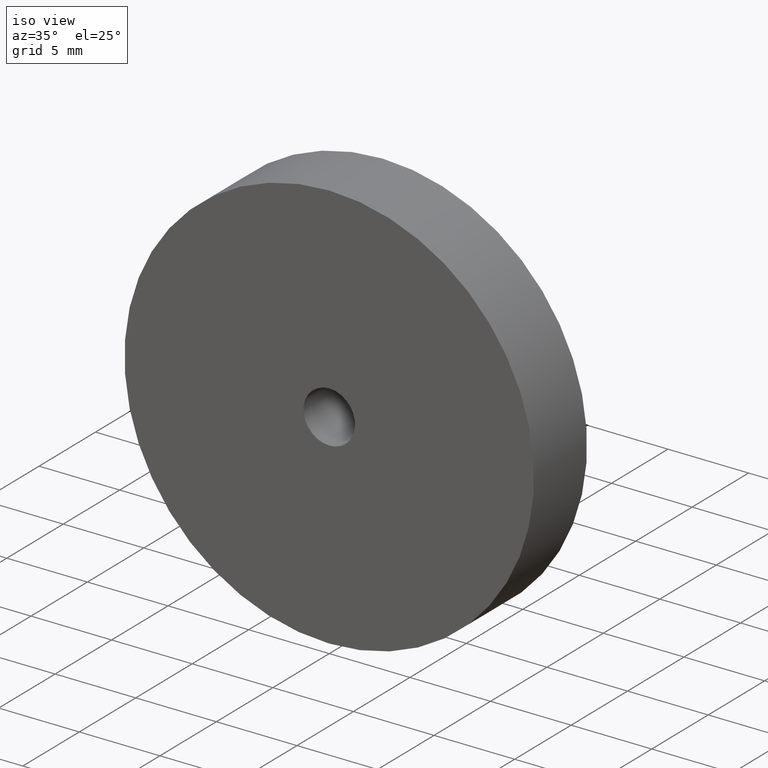
[diagram: clean part render]
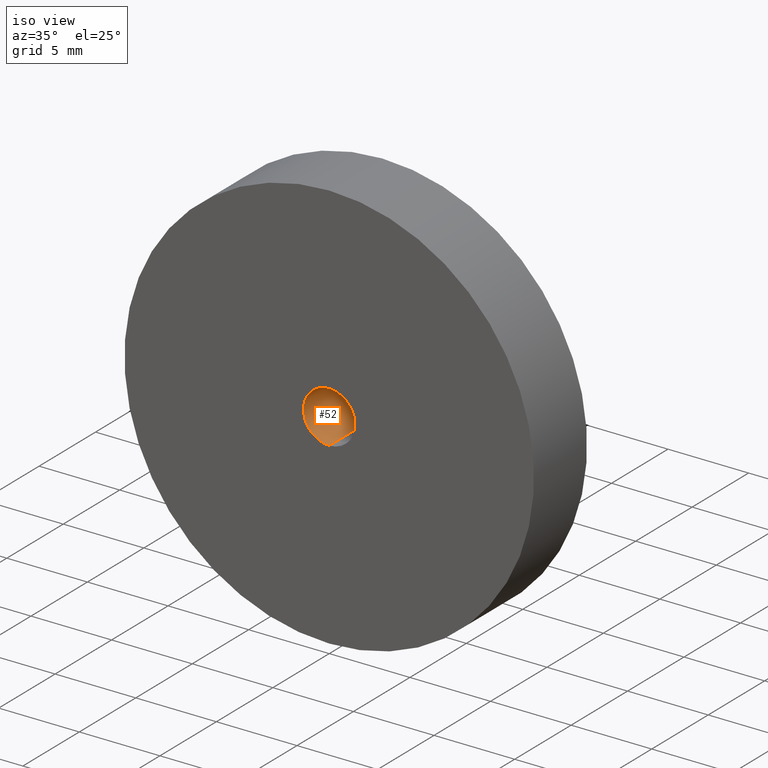
[diagram: same view with one face highlighted and labeled with its STEP entity id]
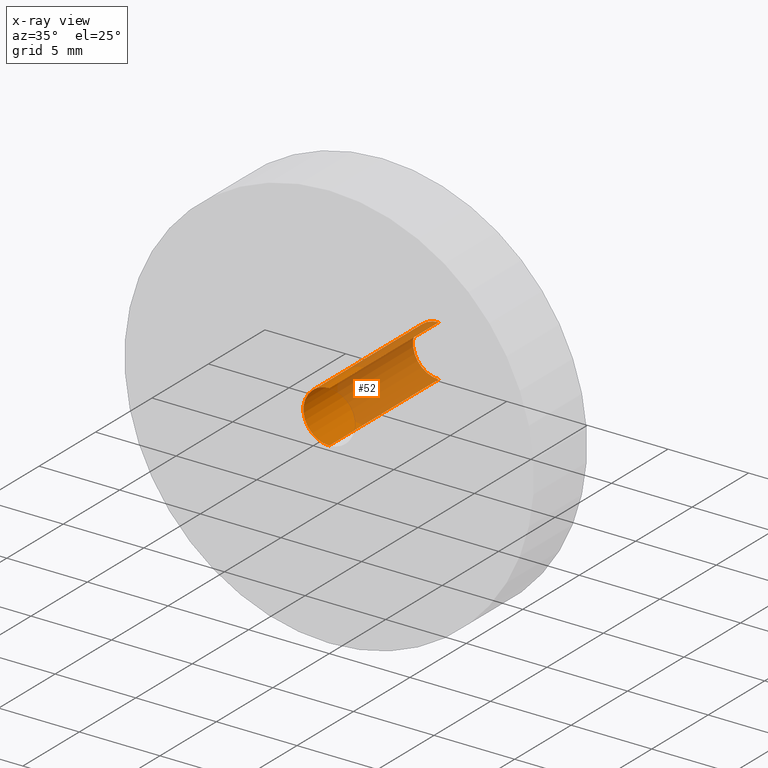
[diagram: x-ray of the same camera — body ghosted, the highlighted face saturated]
A machine part, iso view. The second image highlights one B-rep face of the part: STEP entity #52.
The next image is the same camera in x-ray: the body ghosted, the highlighted face saturated — about 66% of this face is hidden behind the body in this view.
In plain terms, the highlighted cylindrical surface (edge-blend (fillet) strip) has radius 1.6 mm, axis along (-0, -1, -0).
Its self-contained STEP definition (entity closure, byte-faithful):
#2 = VERTEX_POINT ( 'NONE', #29 ) ;
#9 = VERTEX_POINT ( 'NONE', #59 ) ;
#28 = VERTEX_POINT ( 'NONE', #58 ) ;
#29 = CARTESIAN_POINT ( 'NONE',  ( 0.0000000000000000000, 0.0000000000000000000, -1.600000000000000100 ) ) ;
#36 = ORIENTED_EDGE ( 'NONE', *, *, #234, .F. ) ;
#38 = DIRECTION ( 'NONE',  ( 0.0000000000000000000, -1.000000000000000000, 0.0000000000000000000 ) ) ;
#41 = CYLINDRICAL_SURFACE ( 'NONE', #408, 1.600000000000000100 ) ;
#43 = CIRCLE ( 'NONE', #53, 1.600000000000000100 ) ;
#46 = VERTEX_POINT ( 'NONE', #322 ) ;
#52 = ADVANCED_FACE ( 'NONE', ( #129 ), #41, .F. ) ;
#53 = AXIS2_PLACEMENT_3D ( 'NONE', #311, #172, #239 ) ;
#58 = CARTESIAN_POINT ( 'NONE',  ( 1.959434878635765200E-016, 0.0000000000000000000, 1.600000000000000100 ) ) ;
#59 = CARTESIAN_POINT ( 'NONE',  ( 1.959434878635765200E-016, 9.700000000000001100, 1.600000000000000100 ) ) ;
#64 = DIRECTION ( 'NONE',  ( 0.0000000000000000000, 0.0000000000000000000, -1.000000000000000000 ) ) ;
#78 = DIRECTION ( 'NONE',  ( -0.0000000000000000000, -1.000000000000000000, -0.0000000000000000000 ) ) ;
#84 = ORIENTED_EDGE ( 'NONE', *, *, #297, .T. ) ;
#121 = LINE ( 'NONE', #240, #168 ) ;
#129 = FACE_OUTER_BOUND ( 'NONE', #274, .T. ) ;
#158 = DIRECTION ( 'NONE',  ( -0.0000000000000000000, -1.000000000000000000, -0.0000000000000000000 ) ) ;
#161 = AXIS2_PLACEMENT_3D ( 'NONE', #326, #38, #64 ) ;
#168 = VECTOR ( 'NONE', #174, 1000.000000000000000 ) ;
#172 = DIRECTION ( 'NONE',  ( 0.0000000000000000000, -1.000000000000000000, 0.0000000000000000000 ) ) ;
#174 = DIRECTION ( 'NONE',  ( -0.0000000000000000000, -1.000000000000000000, -0.0000000000000000000 ) ) ;
#191 = EDGE_CURVE ( 'NONE', #28, #2, #236, .T. ) ;
#211 = CARTESIAN_POINT ( 'NONE',  ( 0.0000000000000000000, 9.700000000000001100, -1.600000000000000100 ) ) ;
#234 = EDGE_CURVE ( 'NONE', #46, #2, #375, .T. ) ;
#236 = CIRCLE ( 'NONE', #161, 1.600000000000000100 ) ;
#239 = DIRECTION ( 'NONE',  ( 0.0000000000000000000, 0.0000000000000000000, -1.000000000000000000 ) ) ;
#240 = CARTESIAN_POINT ( 'NONE',  ( 1.959434878635765200E-016, 9.700000000000001100, 1.600000000000000100 ) ) ;
#253 = ORIENTED_EDGE ( 'NONE', *, *, #392, .F. ) ;
#274 = EDGE_LOOP ( 'NONE', ( #253, #84, #289, #36 ) ) ;
#289 = ORIENTED_EDGE ( 'NONE', *, *, #191, .T. ) ;
#297 = EDGE_CURVE ( 'NONE', #9, #28, #121, .T. ) ;
#311 = CARTESIAN_POINT ( 'NONE',  ( 0.0000000000000000000, 9.700000000000001100, 0.0000000000000000000 ) ) ;
#322 = CARTESIAN_POINT ( 'NONE',  ( 0.0000000000000000000, 9.700000000000001100, -1.600000000000000100 ) ) ;
#326 = CARTESIAN_POINT ( 'NONE',  ( 0.0000000000000000000, 0.0000000000000000000, 0.0000000000000000000 ) ) ;
#344 = CARTESIAN_POINT ( 'NONE',  ( 0.0000000000000000000, 9.700000000000001100, 0.0000000000000000000 ) ) ;
#373 = DIRECTION ( 'NONE',  ( 0.0000000000000000000, 0.0000000000000000000, -1.000000000000000000 ) ) ;
#375 = LINE ( 'NONE', #211, #388 ) ;
#388 = VECTOR ( 'NONE', #78, 1000.000000000000000 ) ;
#392 = EDGE_CURVE ( 'NONE', #9, #46, #43, .T. ) ;
#408 = AXIS2_PLACEMENT_3D ( 'NONE', #344, #158, #373 ) ;